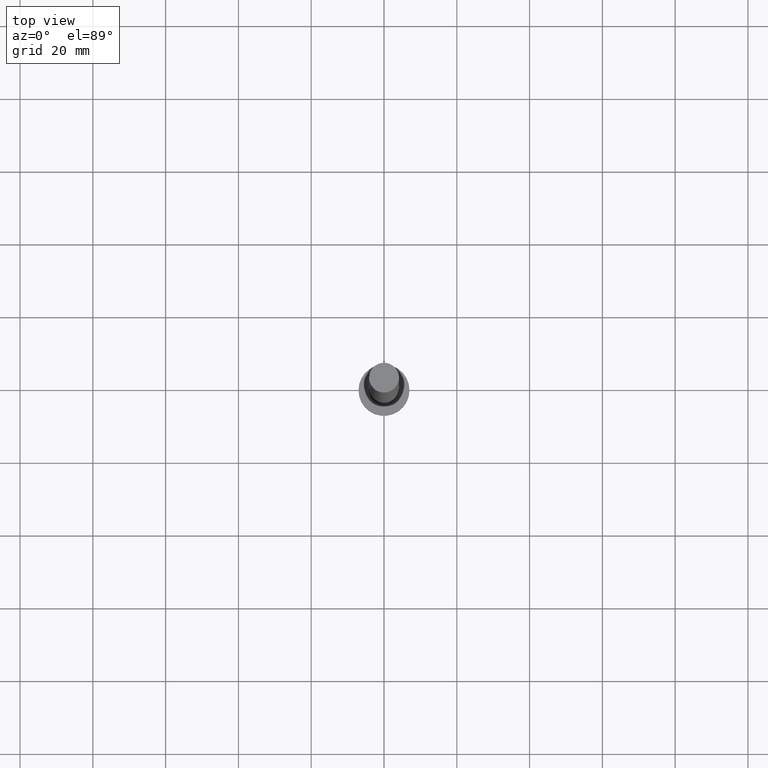
[diagram: clean part render]
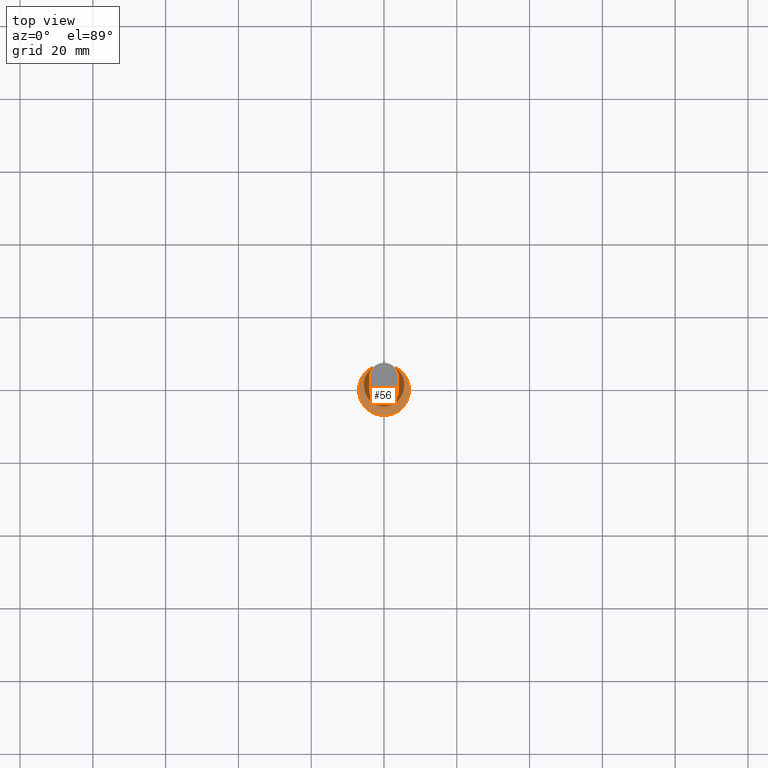
[diagram: same view with one face highlighted and labeled with its STEP entity id]
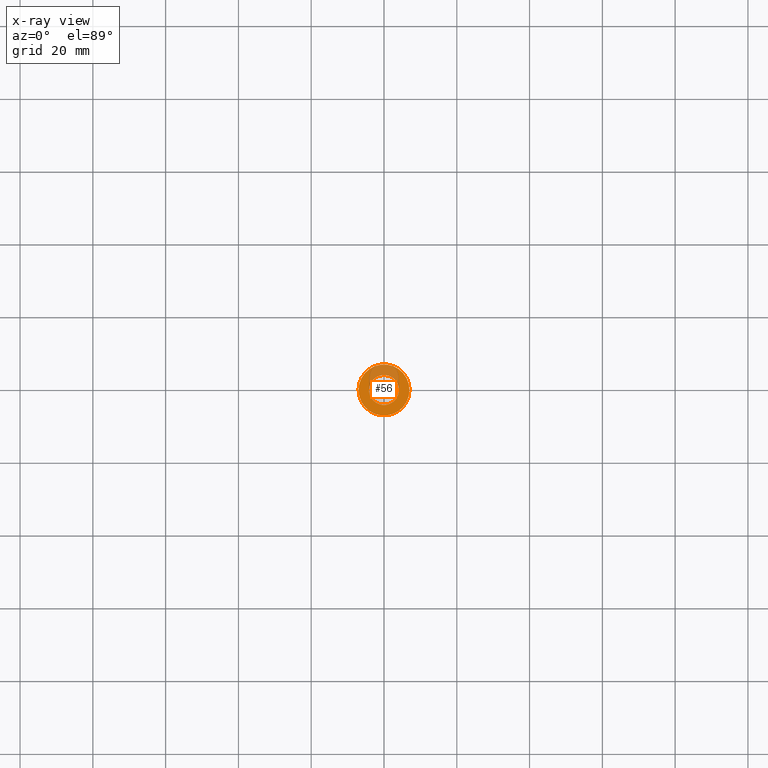
[diagram: x-ray of the same camera — body ghosted, the highlighted face saturated]
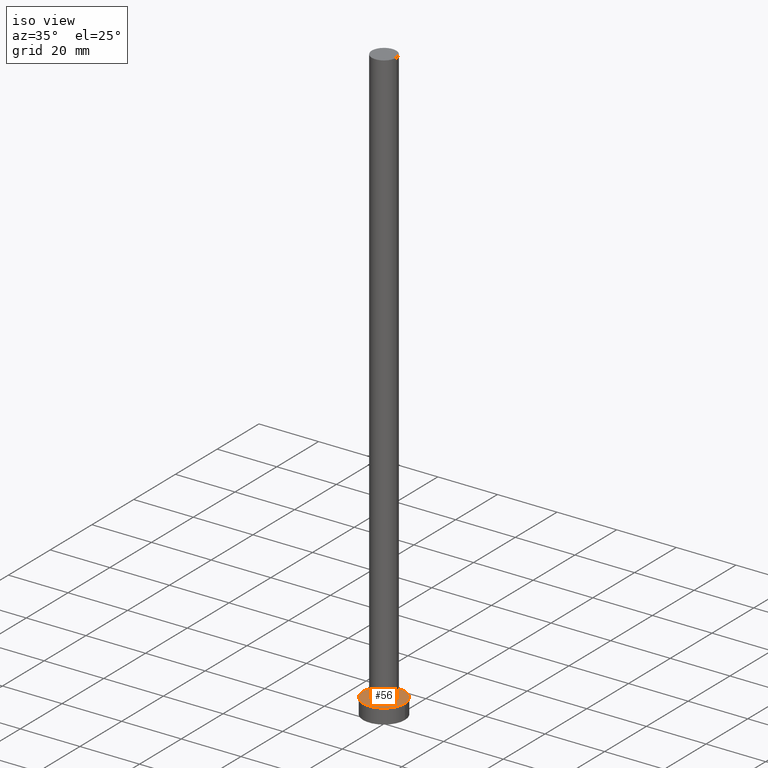
[diagram: same view with one face highlighted and labeled with its STEP entity id]
A machine part, top view. The second image highlights one B-rep face of the part: STEP entity #56.
The next image is the same camera in x-ray: the body ghosted, the highlighted face saturated — about 26% of this face is hidden behind the body in this view.
A second angle (iso view) of the same face is appended — the face is thin or edge-on in the first view.
In plain terms, the highlighted planar face has unit normal (0, 0, 1).
Its self-contained STEP definition (entity closure, byte-faithful):
#9 = FACE_BOUND ( 'NONE', #131, .T. ) ;
#15 = CARTESIAN_POINT ( 'NONE',  ( 0.000000000000000000, 0.000000000000000000, 5.000000000000000000 ) ) ;
#17 = EDGE_CURVE ( 'NONE', #38, #197, #123, .T. ) ;
#23 = ORIENTED_EDGE ( 'NONE', *, *, #52, .T. ) ;
#27 = CARTESIAN_POINT ( 'NONE',  ( 0.000000000000000000, 0.000000000000000000, 5.000000000000000000 ) ) ;
#29 = DIRECTION ( 'NONE',  ( 0.000000000000000000, 0.000000000000000000, 1.000000000000000000 ) ) ;
#31 = AXIS2_PLACEMENT_3D ( 'NONE', #27, #85, #161 ) ;
#38 = VERTEX_POINT ( 'NONE', #83 ) ;
#52 = EDGE_CURVE ( 'NONE', #235, #108, #251, .T. ) ;
#53 = DIRECTION ( 'NONE',  ( 0.000000000000000000, 0.000000000000000000, 1.000000000000000000 ) ) ;
#56 = ADVANCED_FACE ( 'NONE', ( #9, #166 ), #203, .T. ) ;
#61 = AXIS2_PLACEMENT_3D ( 'NONE', #221, #102, #162 ) ;
#66 = AXIS2_PLACEMENT_3D ( 'NONE', #15, #72, #70 ) ;
#70 = DIRECTION ( 'NONE',  ( 1.000000000000000000, 0.000000000000000000, 0.000000000000000000 ) ) ;
#72 = DIRECTION ( 'NONE',  ( 0.000000000000000000, 0.000000000000000000, 1.000000000000000000 ) ) ;
#83 = CARTESIAN_POINT ( 'NONE',  ( 4.099999999999999645, 5.021051876504147385E-16, 5.000000000000000000 ) ) ;
#84 = CARTESIAN_POINT ( 'NONE',  ( 0.000000000000000000, 0.000000000000000000, 5.000000000000000000 ) ) ;
#85 = DIRECTION ( 'NONE',  ( 0.000000000000000000, 0.000000000000000000, 1.000000000000000000 ) ) ;
#86 = CARTESIAN_POINT ( 'NONE',  ( -7.000000000000000000, 0.000000000000000000, 5.000000000000000000 ) ) ;
#99 = EDGE_CURVE ( 'NONE', #108, #235, #234, .T. ) ;
#102 = DIRECTION ( 'NONE',  ( 0.000000000000000000, 0.000000000000000000, 1.000000000000000000 ) ) ;
#108 = VERTEX_POINT ( 'NONE', #86 ) ;
#121 = DIRECTION ( 'NONE',  ( 1.000000000000000000, 0.000000000000000000, 0.000000000000000000 ) ) ;
#123 = CIRCLE ( 'NONE', #136, 4.099999999999999645 ) ;
#126 = ORIENTED_EDGE ( 'NONE', *, *, #247, .F. ) ;
#131 = EDGE_LOOP ( 'NONE', ( #126, #233 ) ) ;
#136 = AXIS2_PLACEMENT_3D ( 'NONE', #84, #29, #185 ) ;
#153 = AXIS2_PLACEMENT_3D ( 'NONE', #216, #53, #121 ) ;
#157 = CIRCLE ( 'NONE', #66, 4.099999999999999645 ) ;
#161 = DIRECTION ( 'NONE',  ( 1.000000000000000000, 0.000000000000000000, -0.000000000000000000 ) ) ;
#162 = DIRECTION ( 'NONE',  ( 1.000000000000000000, 0.000000000000000000, 0.000000000000000000 ) ) ;
#166 = FACE_OUTER_BOUND ( 'NONE', #229, .T. ) ;
#185 = DIRECTION ( 'NONE',  ( 1.000000000000000000, 0.000000000000000000, 0.000000000000000000 ) ) ;
#197 = VERTEX_POINT ( 'NONE', #249 ) ;
#203 = PLANE ( 'NONE',  #31 ) ;
#216 = CARTESIAN_POINT ( 'NONE',  ( 0.000000000000000000, 0.000000000000000000, 5.000000000000000000 ) ) ;
#221 = CARTESIAN_POINT ( 'NONE',  ( 0.000000000000000000, 0.000000000000000000, 5.000000000000000000 ) ) ;
#229 = EDGE_LOOP ( 'NONE', ( #253, #23 ) ) ;
#233 = ORIENTED_EDGE ( 'NONE', *, *, #17, .F. ) ;
#234 = CIRCLE ( 'NONE', #153, 7.000000000000000000 ) ;
#235 = VERTEX_POINT ( 'NONE', #248 ) ;
#247 = EDGE_CURVE ( 'NONE', #197, #38, #157, .T. ) ;
#248 = CARTESIAN_POINT ( 'NONE',  ( 7.000000000000000000, 8.572527594031473190E-16, 5.000000000000000000 ) ) ;
#249 = CARTESIAN_POINT ( 'NONE',  ( -4.099999999999999645, 0.000000000000000000, 5.000000000000000000 ) ) ;
#251 = CIRCLE ( 'NONE', #61, 7.000000000000000000 ) ;
#253 = ORIENTED_EDGE ( 'NONE', *, *, #99, .T. ) ;